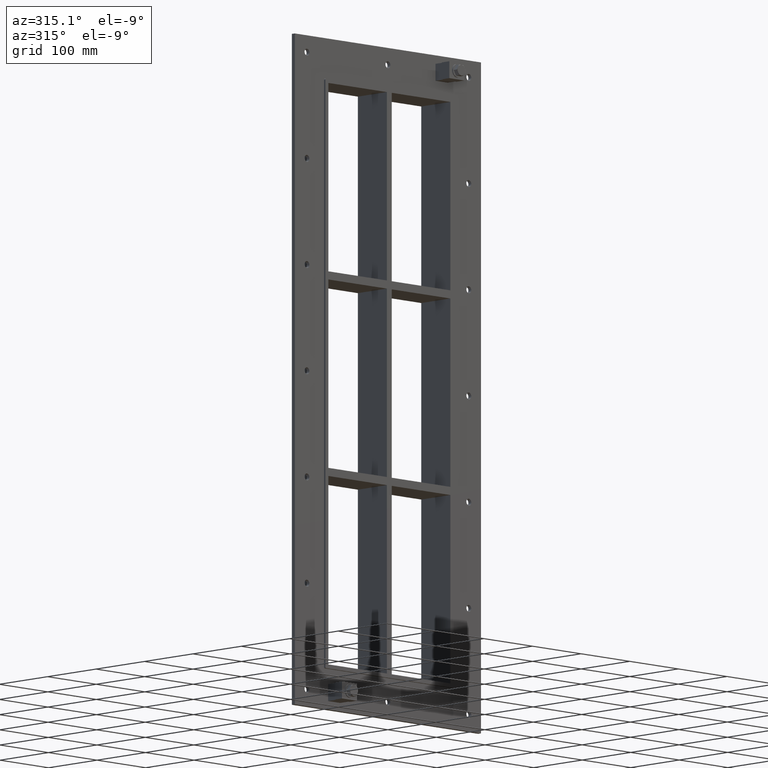
[diagram: clean part render]
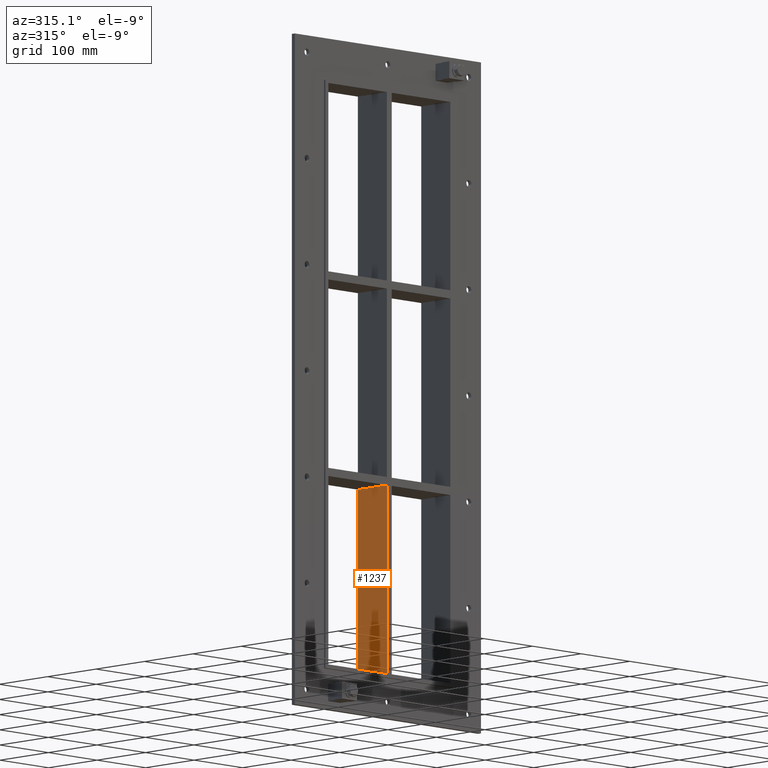
[diagram: same view with one face highlighted and labeled with its STEP entity id]
A machine part, auxiliary view. The second image highlights one B-rep face of the part: STEP entity #1237.
In plain terms, the highlighted planar face has unit normal (-1, 0, 0).
Its self-contained STEP definition (entity closure, byte-faithful):
#907=CARTESIAN_POINT('',(-5.000000000000355,-3.0,-151.00000000001128));
#908=VERTEX_POINT('',#907);
#909=CARTESIAN_POINT('',(-5.000000000000355,57.0,-151.00000000001128));
#910=VERTEX_POINT('',#909);
#911=CARTESIAN_POINT('',(-5.000000000000355,-3.0,-151.00000000001128));
#912=DIRECTION('',(0.0,1.0,0.0));
#913=VECTOR('',#912,60.0);
#914=LINE('',#911,#913);
#915=EDGE_CURVE('',#908,#910,#914,.T.);
#1161=CARTESIAN_POINT('',(-5.000000000000302,57.0,-429.00000000000006));
#1162=VERTEX_POINT('',#1161);
#1169=CARTESIAN_POINT('',(-5.000000000000302,57.0,-429.00000000000006));
#1170=DIRECTION('',(0.0,0.0,1.0));
#1171=VECTOR('',#1170,277.99999999998875);
#1172=LINE('',#1169,#1171);
#1173=EDGE_CURVE('',#1162,#910,#1172,.T.);
#1214=CARTESIAN_POINT('',(-5.000000000000302,-3.0,-429.00000000000006));
#1215=DIRECTION('',(-1.0,0.0,0.0));
#1216=DIRECTION('',(0.0,0.0,1.0));
#1217=AXIS2_PLACEMENT_3D('',#1214,#1215,#1216);
#1218=PLANE('',#1217);
#1219=ORIENTED_EDGE('',*,*,#915,.T.);
#1220=ORIENTED_EDGE('',*,*,#1173,.F.);
#1221=CARTESIAN_POINT('',(-5.000000000000302,-3.0,-429.00000000000006));
#1222=VERTEX_POINT('',#1221);
#1223=CARTESIAN_POINT('',(-5.000000000000302,-3.0,-429.00000000000006));
#1224=DIRECTION('',(0.0,1.0,0.0));
#1225=VECTOR('',#1224,60.000000000000007);
#1226=LINE('',#1223,#1225);
#1227=EDGE_CURVE('',#1222,#1162,#1226,.T.);
#1228=ORIENTED_EDGE('',*,*,#1227,.F.);
#1229=CARTESIAN_POINT('',(-5.000000000000302,-3.0,-429.00000000000006));
#1230=DIRECTION('',(0.0,0.0,1.0));
#1231=VECTOR('',#1230,277.99999999998875);
#1232=LINE('',#1229,#1231);
#1233=EDGE_CURVE('',#1222,#908,#1232,.T.);
#1234=ORIENTED_EDGE('',*,*,#1233,.T.);
#1235=EDGE_LOOP('',(#1219,#1220,#1228,#1234));
#1236=FACE_OUTER_BOUND('',#1235,.T.);
#1237=ADVANCED_FACE('',(#1236),#1218,.T.);